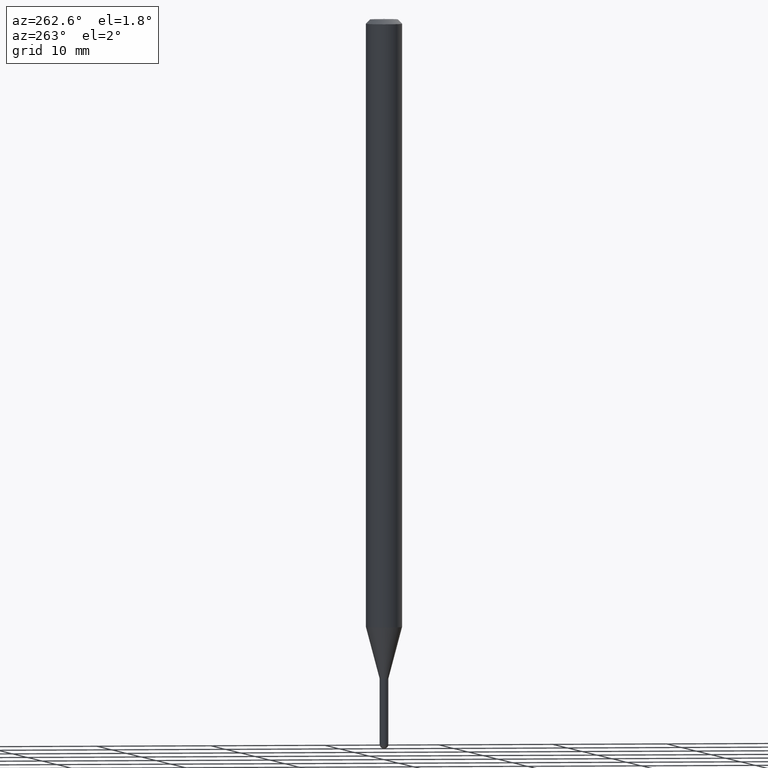
[diagram: clean part render]
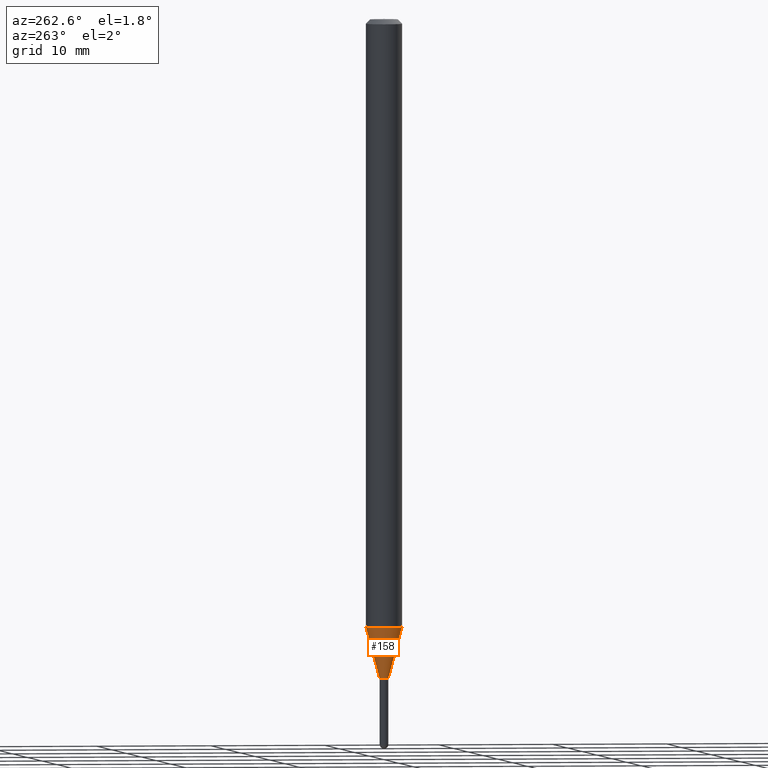
[diagram: same view with one face highlighted and labeled with its STEP entity id]
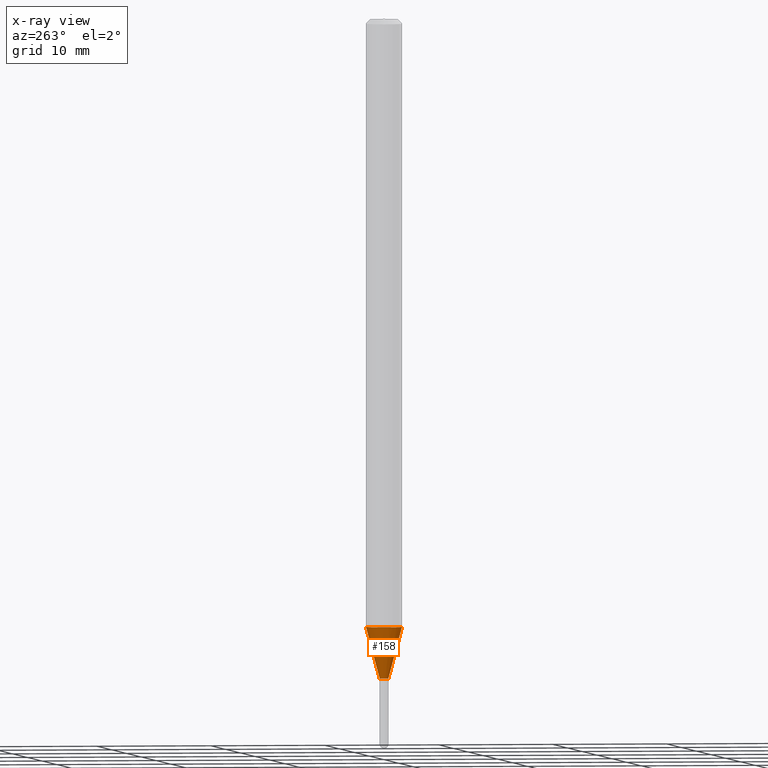
[diagram: x-ray of the same camera — body ghosted, the highlighted face saturated]
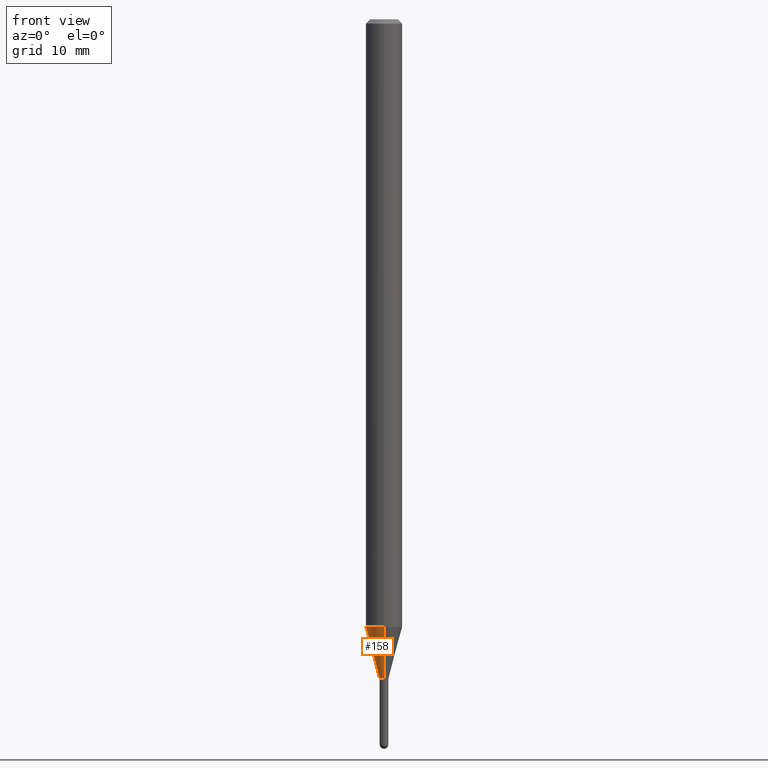
[diagram: same view with one face highlighted and labeled with its STEP entity id]
A machine part, auxiliary view. The second image highlights one B-rep face of the part: STEP entity #158.
The next image is the same camera in x-ray: the body ghosted, the highlighted face saturated — about 0% of this face is hidden behind the body in this view.
A second angle (front view) of the same face is appended — the face is thin or edge-on in the first view.
In plain terms, the highlighted conical surface has half-angle 15 deg.
Its self-contained STEP definition (entity closure, byte-faithful):
#4 = CARTESIAN_POINT ( 'NONE',  ( -4.364351673553408372E-16, -0.06250000000000728584, -2.082727586640484851 ) ) ;
#6 = DIRECTION ( 'NONE',  ( -6.982962677686265922E-15, -1.000000000000000000, 0.000000000000000000 ) ) ;
#52 = DIRECTION ( 'NONE',  ( -6.982962677686265922E-15, -1.000000000000000000, 0.000000000000000000 ) ) ;
#57 = CARTESIAN_POINT ( 'NONE',  ( -1.047444401652401091E-16, -0.01500000000000809020, -2.260000000000000231 ) ) ;
#75 = VERTEX_POINT ( 'NONE', #4 ) ;
#89 = LINE ( 'NONE', #477, #317 ) ;
#91 = ORIENTED_EDGE ( 'NONE', *, *, #141, .T. ) ;
#100 = VECTOR ( 'NONE', #227, 39.37007874015748143 ) ;
#106 = CARTESIAN_POINT ( 'NONE',  ( 1.065814103640717110E-16, 0.01499999999999231115, -2.260000000000000231 ) ) ;
#114 = EDGE_LOOP ( 'NONE', ( #386, #316, #91, #367 ) ) ;
#115 = VERTEX_POINT ( 'NONE', #283 ) ;
#130 = CARTESIAN_POINT ( 'NONE',  ( 4.440892098501133005E-16, 0.06249999999999271416, -2.082727586640485296 ) ) ;
#141 = EDGE_CURVE ( 'NONE', #387, #75, #89, .T. ) ;
#142 = AXIS2_PLACEMENT_3D ( 'NONE', #162, #405, #52 ) ;
#158 = ADVANCED_FACE ( 'NONE', ( #204 ), #199, .T. ) ;
#160 = AXIS2_PLACEMENT_3D ( 'NONE', #320, #361, #6 ) ;
#162 = CARTESIAN_POINT ( 'NONE',  ( 5.526902026454056654E-29, -7.890543722624391870E-15, -2.260000000000000231 ) ) ;
#168 = AXIS2_PLACEMENT_3D ( 'NONE', #209, #398, #207 ) ;
#172 = VERTEX_POINT ( 'NONE', #130 ) ;
#177 = CIRCLE ( 'NONE', #160, 0.01500000000000020067 ) ;
#181 = EDGE_CURVE ( 'NONE', #172, #75, #391, .T. ) ;
#199 = CONICAL_SURFACE ( 'NONE', #142, 0.01500000000000020067, 0.2617993877991574569 ) ;
#204 = FACE_OUTER_BOUND ( 'NONE', #114, .T. ) ;
#207 = DIRECTION ( 'NONE',  ( -6.982962677686265922E-15, -1.000000000000000000, 4.370956789862821150E-15 ) ) ;
#209 = CARTESIAN_POINT ( 'NONE',  ( 5.093376689891620296E-29, -7.271616409160498436E-15, -2.082727586640484851 ) ) ;
#223 = EDGE_CURVE ( 'NONE', #115, #387, #177, .T. ) ;
#225 = LINE ( 'NONE', #106, #100 ) ;
#227 = DIRECTION ( 'NONE',  ( 1.839019923739649619E-15, 0.2588190451025318972, 0.9659258262890653146 ) ) ;
#283 = CARTESIAN_POINT ( 'NONE',  ( 2.753353101070928077E-16, 0.01499999999999231289, -2.260000000000000231 ) ) ;
#316 = ORIENTED_EDGE ( 'NONE', *, *, #223, .T. ) ;
#317 = VECTOR ( 'NONE', #445, 39.37007874015748854 ) ;
#320 = CARTESIAN_POINT ( 'NONE',  ( 5.526902026454056654E-29, -7.890543722624391870E-15, -2.260000000000000231 ) ) ;
#361 = DIRECTION ( 'NONE',  ( -2.445531870112414525E-29, 3.491391027709907932E-15, 1.000000000000000000 ) ) ;
#367 = ORIENTED_EDGE ( 'NONE', *, *, #181, .F. ) ;
#386 = ORIENTED_EDGE ( 'NONE', *, *, #435, .F. ) ;
#387 = VERTEX_POINT ( 'NONE', #57 ) ;
#391 = CIRCLE ( 'NONE', #168, 0.06250000000000000000 ) ;
#398 = DIRECTION ( 'NONE',  ( -2.445531870112414525E-29, 3.491391027709907932E-15, 1.000000000000000000 ) ) ;
#405 = DIRECTION ( 'NONE',  ( -2.445531870112414525E-29, 3.491391027709907932E-15, 1.000000000000000000 ) ) ;
#435 = EDGE_CURVE ( 'NONE', #115, #172, #225, .T. ) ;
#445 = DIRECTION ( 'NONE',  ( -1.807323732225378654E-15, -0.2588190451025251249, 0.9659258262890670910 ) ) ;
#477 = CARTESIAN_POINT ( 'NONE',  ( -1.047444401652401091E-16, -0.01500000000000809020, -2.260000000000000231 ) ) ;